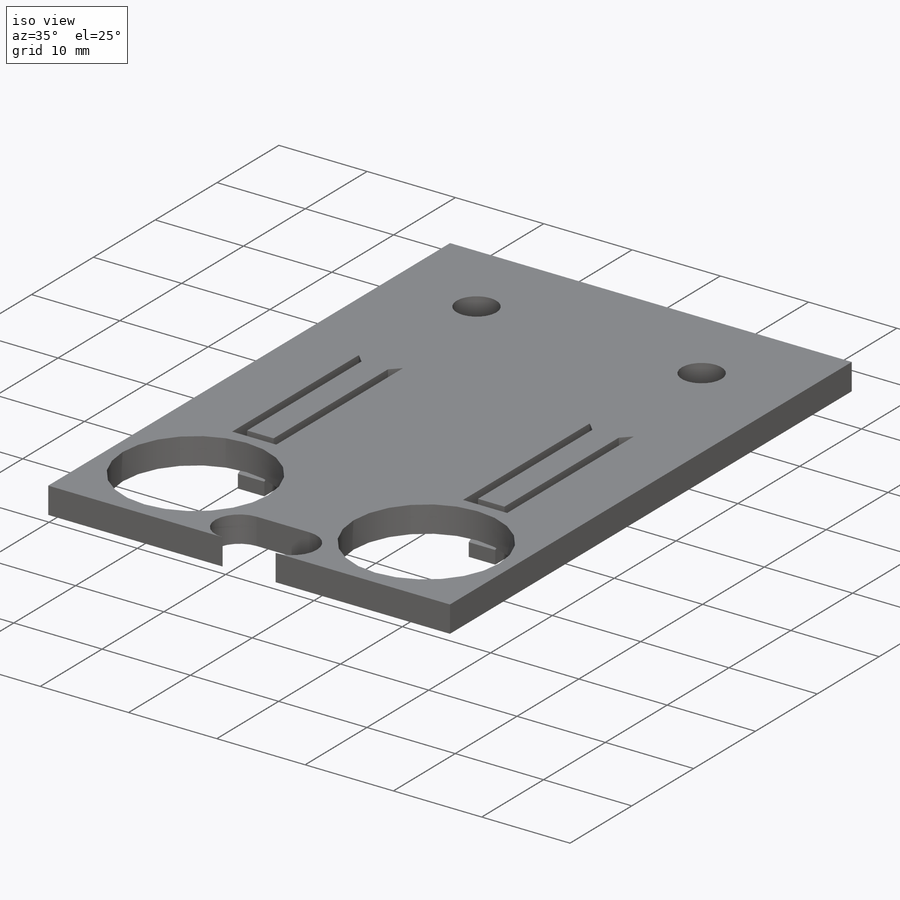
[diagram: iso view]
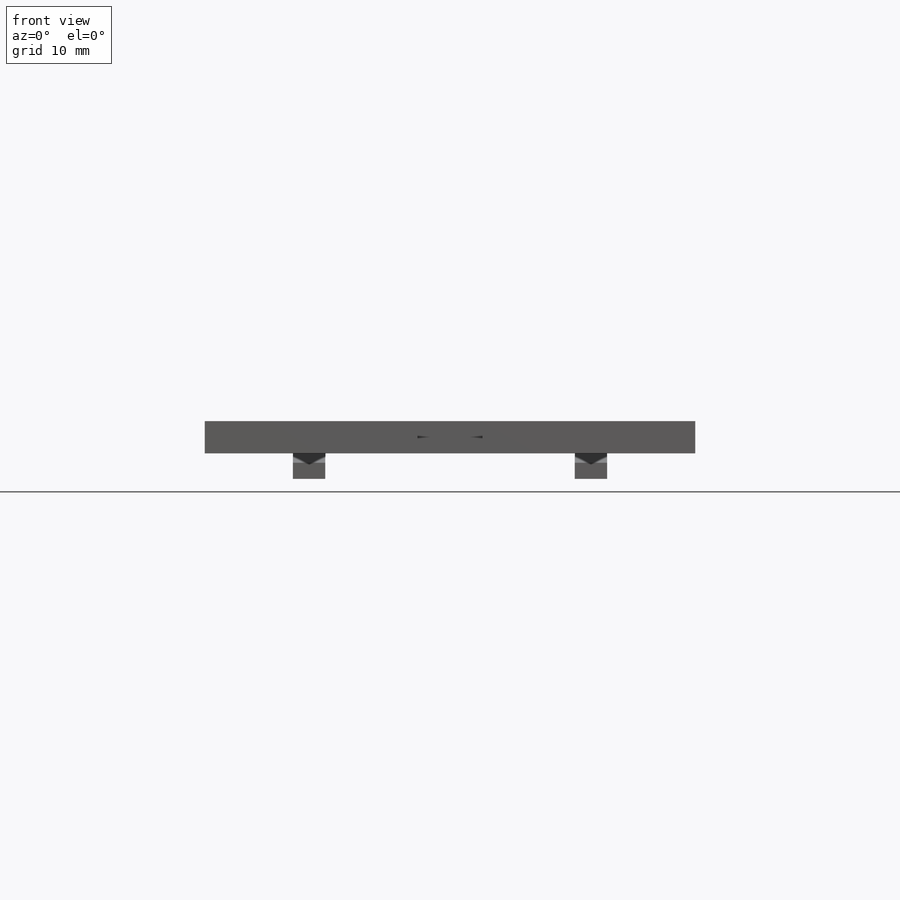
[diagram: front view]
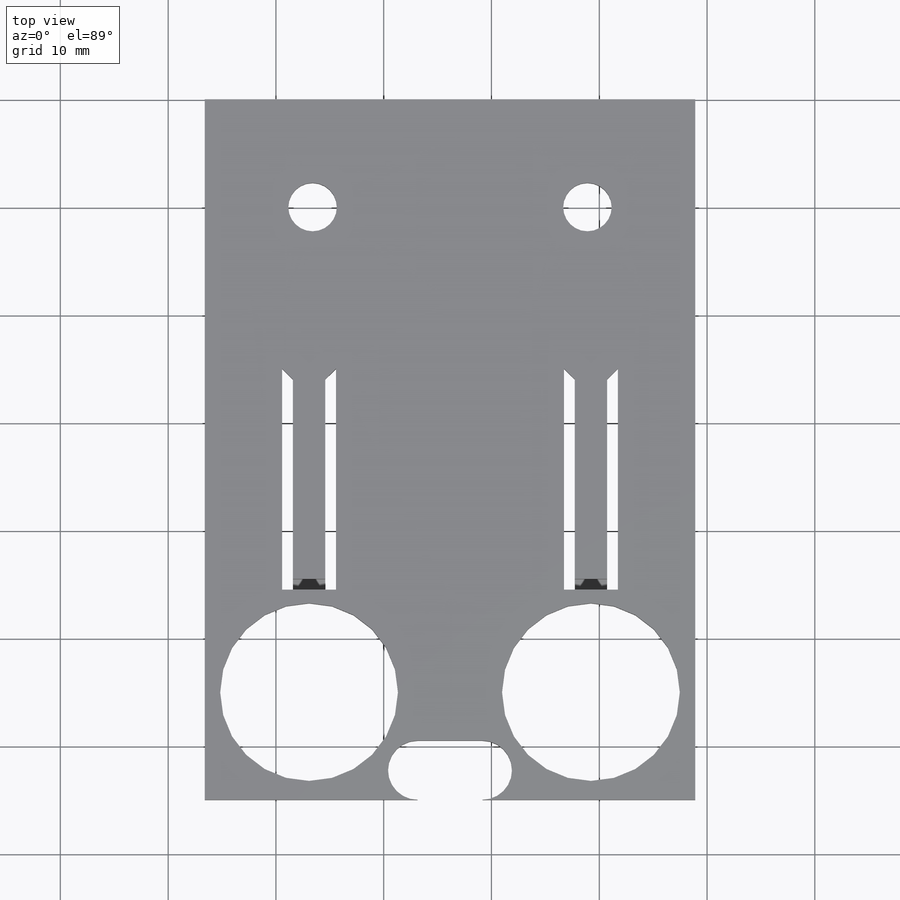
[diagram: top view]
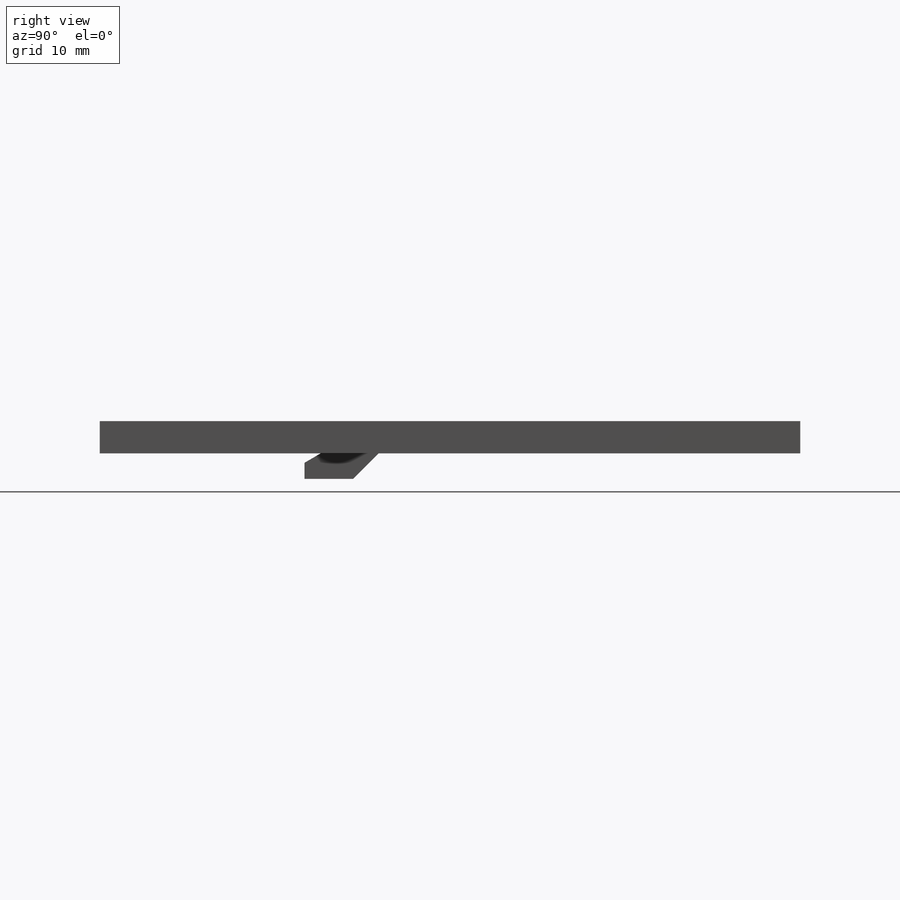
[diagram: right view]
SOLIDWORKS PART (.sldprt)
format: sldprt  version: not decoded by parser v0  size: 422,400 bytes
history: native  units: mm
features: sketch x10, cut_extrude x6, extrude x3, chamfer x2, material x1, plane x1, mirror x1 (+12 scaffold rows collapsed)
feature tree (36):
  scaffold x12  (default folders/planes/origin — collapsed)
  material  "Material <not specified>"
  sketch  "Sketch1"  dims[c1.D3=4.5mm c1.D4=4.5mm c1.D5=4.5mm c1.D6=4.5mm c1.D7=4.5mm c1.D8=4.5mm c1.D1=45.5mm c1.D2=3.0mm c2.D5=7.0mm c2.D6=7.0mm c2.D7=10.0mm c2.D8=10.0mm c2.D9=7.5mm c2.D10=7.5mm]
  extrude  "Boss-Extrude1"  Depth=20mm
  sketch  "Sketch2"  dims[D1=3.0mm]
  extrude  "Boss-Extrude2"  Depth=45mm
  sketch  "Sketch3"  dims[c1.D1=16.5mm c1.D2=16.5mm c1.D3=16.2mm c1.D4=16.2mm c1.D5=16.2mm c2.D3=10.0mm c2.D4=10.0mm c2.D5=26.15mm]
  cut_extrude  "Cut-Extrude1"  [1 undecoded]
  sketch  "Sketch5"  dims[c1.D1=1.0mm c1.D2=1.0mm c1.D3=3.0mm c1.D4=1.0mm c1.D5=19.5mm c1.D6=5.0mm c1.D7=5.325mm c2.D6=40.0mm]
  cut_extrude  "Cut-Extrude2"  [1 undecoded]
  sketch  "Sketch6"  dims[c1.D1=3.0mm c1.D2=0.0mm c1.D3=1.5mm c1.D4=1.5mm c2.D4=60.0deg c2.D5=1.5mm c2.D1=3.0mm c2.D2=~2.857186mm c3.D2=45.0deg]
  extrude  "Boss-Extrude4"  Depth=3mm
  sketch  "Sketch8"  dims[D1=23.15mm]
  plane  "Plane5"
  mirror  "Mirror7"
  sketch  "Sketch9"  dims[c1.D2=2.75mm c1.D3=2.75mm c1.D1=5.5mm c2.D2=6.0mm]
  cut_extrude  "Cut-Extrude3"  [1 undecoded]
  sketch  "Sketch10"  dims[D1=10.0mm D2=2.5mm D3=20.0mm]
  cut_extrude  "Cut-Extrude4"  Depth=2mm
  sketch  "Sketch13"
  cut_extrude  "Cut-Extrude6"  Depth=1mm
  chamfer  "Chamfer1"  Distance=1mm Angle=45deg
  sketch  "Sketch15"  dims[c1.D1=~6.950948mm c1.D2=~6.950948mm c1.D3=4.5mm c1.D4=4.5mm c1.D5=4.5mm c1.D6=4.5mm c2.D1=10.0mm c2.D2=10.0mm c2.D5=10.0mm c2.D6=10.0mm]
  cut_extrude  "Cut-Extrude7"  [1 undecoded]
  chamfer  "Chamfer2"  Distance=1mm Angle=45deg
decode coverage: 16 of 22 modeling features carry decoded parameters
note: ~ marks probable driven/reference dimensions
note: 4 parameter values undecoded
summary: no parameter record found for 4 features
note: suppression state not decoded; provenance and decode notes live in map.json
